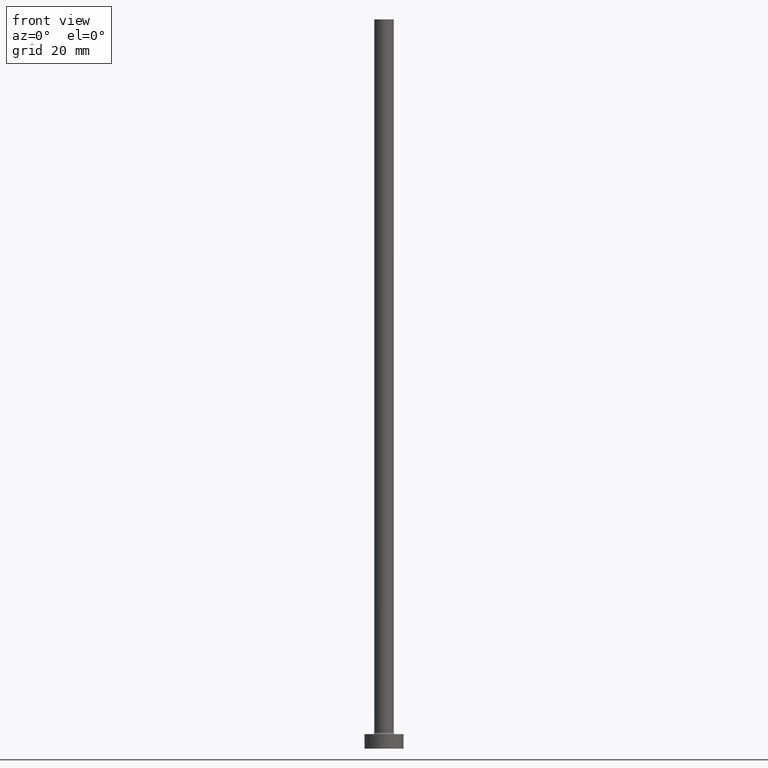
[diagram: clean part render]
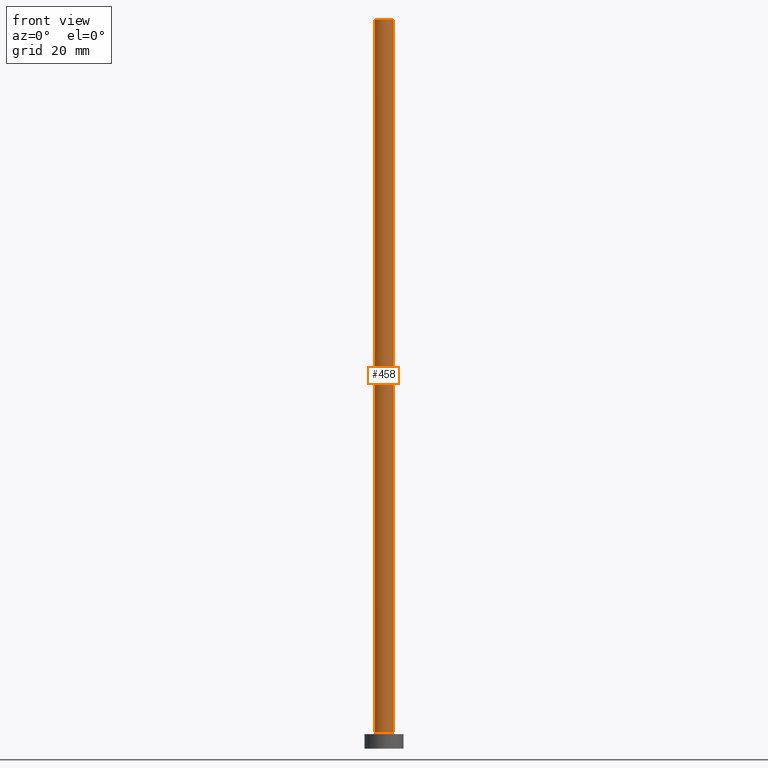
[diagram: same view with one face highlighted and labeled with its STEP entity id]
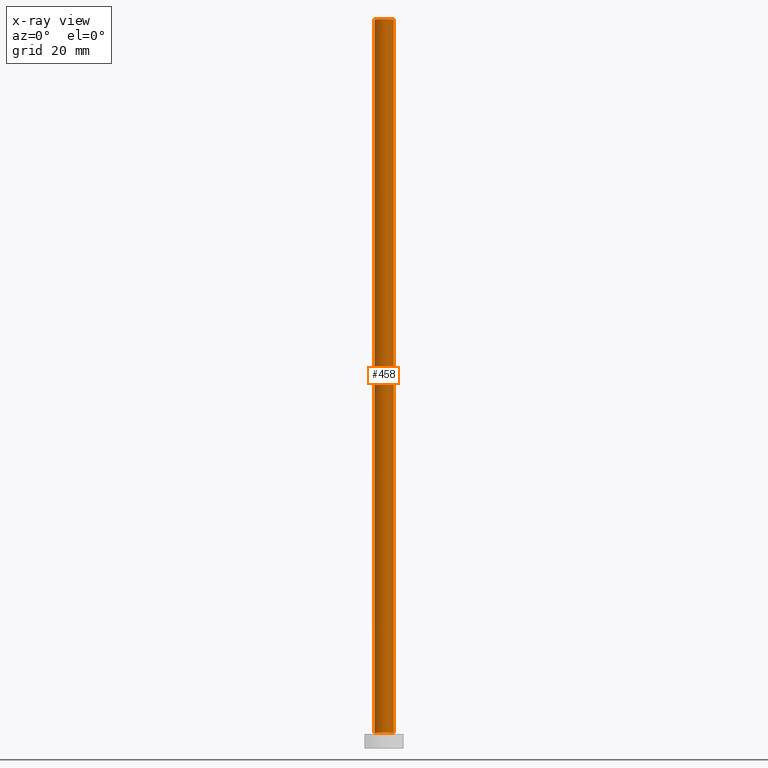
[diagram: x-ray of the same camera — body ghosted, the highlighted face saturated]
A machine part, front view. The second image highlights one B-rep face of the part: STEP entity #458.
The next image is the same camera in x-ray: the body ghosted, the highlighted face saturated — about 0% of this face is hidden behind the body in this view.
In plain terms, the highlighted cylindrical surface (edge-blend (fillet) strip) has radius 2 mm, axis along (-0, -0, -1).
Its self-contained STEP definition (entity closure, byte-faithful):
#11 = ORIENTED_EDGE ( 'NONE', *, *, #399, .T. ) ;
#29 = ORIENTED_EDGE ( 'NONE', *, *, #364, .F. ) ;
#53 = CARTESIAN_POINT ( 'NONE',  ( 2.000000000000000000, 2.449293598294706414E-16, 150.0000000000000000 ) ) ;
#54 = LINE ( 'NONE', #332, #109 ) ;
#71 = ORIENTED_EDGE ( 'NONE', *, *, #206, .F. ) ;
#78 = AXIS2_PLACEMENT_3D ( 'NONE', #119, #223, #395 ) ;
#97 = ORIENTED_EDGE ( 'NONE', *, *, #408, .T. ) ;
#108 = CYLINDRICAL_SURFACE ( 'NONE', #78, 2.000000000000000000 ) ;
#109 = VECTOR ( 'NONE', #192, 1000.000000000000000 ) ;
#119 = CARTESIAN_POINT ( 'NONE',  ( 0.000000000000000000, 0.000000000000000000, 150.0000000000000000 ) ) ;
#131 = CARTESIAN_POINT ( 'NONE',  ( -2.000000000000000000, 0.000000000000000000, 150.0000000000000000 ) ) ;
#135 = CARTESIAN_POINT ( 'NONE',  ( 2.000000000000000000, 2.449293598294706414E-16, 3.299999999999997158 ) ) ;
#143 = CARTESIAN_POINT ( 'NONE',  ( -2.000000000000000000, 0.000000000000000000, 3.299999999999997158 ) ) ;
#169 = CARTESIAN_POINT ( 'NONE',  ( -2.000000000000000000, 0.000000000000000000, 150.0000000000000000 ) ) ;
#179 = LINE ( 'NONE', #131, #386 ) ;
#186 = CIRCLE ( 'NONE', #441, 2.000000000000000000 ) ;
#192 = DIRECTION ( 'NONE',  ( -0.000000000000000000, -0.000000000000000000, -1.000000000000000000 ) ) ;
#206 = EDGE_CURVE ( 'NONE', #422, #356, #54, .T. ) ;
#211 = EDGE_LOOP ( 'NONE', ( #71, #29, #11, #97 ) ) ;
#217 = AXIS2_PLACEMENT_3D ( 'NONE', #387, #456, #247 ) ;
#223 = DIRECTION ( 'NONE',  ( -0.000000000000000000, -0.000000000000000000, -1.000000000000000000 ) ) ;
#244 = VERTEX_POINT ( 'NONE', #169 ) ;
#247 = DIRECTION ( 'NONE',  ( 1.000000000000000000, 0.000000000000000000, 0.000000000000000000 ) ) ;
#269 = VERTEX_POINT ( 'NONE', #143 ) ;
#292 = CIRCLE ( 'NONE', #217, 2.000000000000000000 ) ;
#323 = FACE_OUTER_BOUND ( 'NONE', #211, .T. ) ;
#332 = CARTESIAN_POINT ( 'NONE',  ( 2.000000000000000000, 2.449293598294706414E-16, 150.0000000000000000 ) ) ;
#356 = VERTEX_POINT ( 'NONE', #135 ) ;
#357 = DIRECTION ( 'NONE',  ( 0.000000000000000000, 0.000000000000000000, 1.000000000000000000 ) ) ;
#361 = DIRECTION ( 'NONE',  ( -0.000000000000000000, -0.000000000000000000, -1.000000000000000000 ) ) ;
#364 = EDGE_CURVE ( 'NONE', #244, #422, #292, .T. ) ;
#370 = DIRECTION ( 'NONE',  ( 1.000000000000000000, 0.000000000000000000, 0.000000000000000000 ) ) ;
#386 = VECTOR ( 'NONE', #361, 1000.000000000000000 ) ;
#387 = CARTESIAN_POINT ( 'NONE',  ( 0.000000000000000000, 0.000000000000000000, 150.0000000000000000 ) ) ;
#395 = DIRECTION ( 'NONE',  ( -1.000000000000000000, 0.000000000000000000, 0.000000000000000000 ) ) ;
#398 = CARTESIAN_POINT ( 'NONE',  ( 0.000000000000000000, 0.000000000000000000, 3.299999999999997158 ) ) ;
#399 = EDGE_CURVE ( 'NONE', #244, #269, #179, .T. ) ;
#408 = EDGE_CURVE ( 'NONE', #269, #356, #186, .T. ) ;
#422 = VERTEX_POINT ( 'NONE', #53 ) ;
#441 = AXIS2_PLACEMENT_3D ( 'NONE', #398, #357, #370 ) ;
#456 = DIRECTION ( 'NONE',  ( 0.000000000000000000, 0.000000000000000000, 1.000000000000000000 ) ) ;
#458 = ADVANCED_FACE ( 'NONE', ( #323 ), #108, .T. ) ;